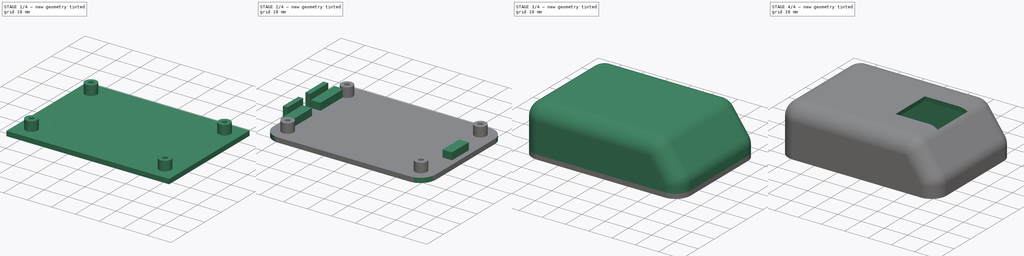
[diagram: build sequence overview — one tinted view per stage of 4, left to right]
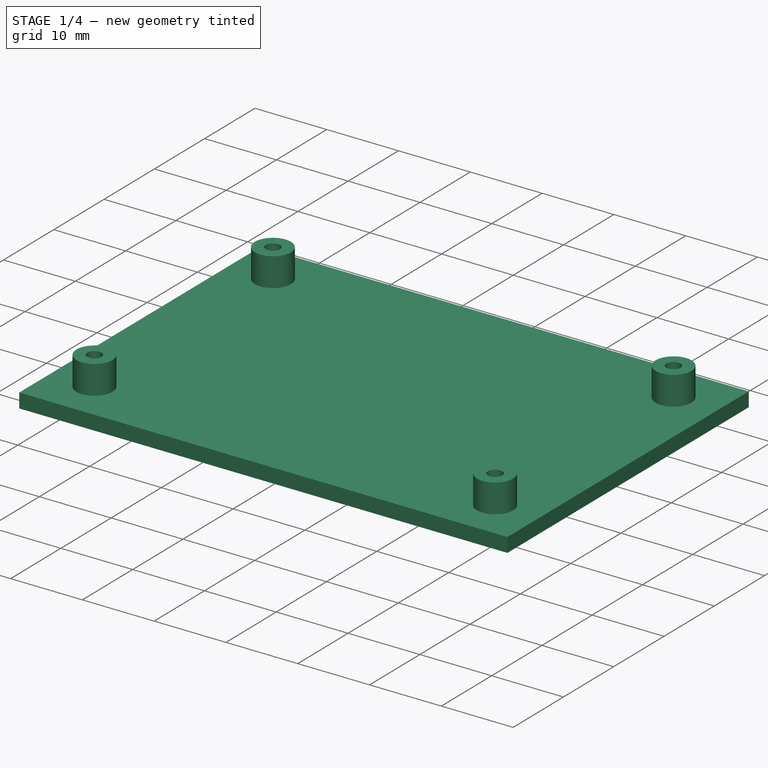
[diagram: stage 1 of 4 — iso view after this stage's code; geometry added in this stage tinted green]
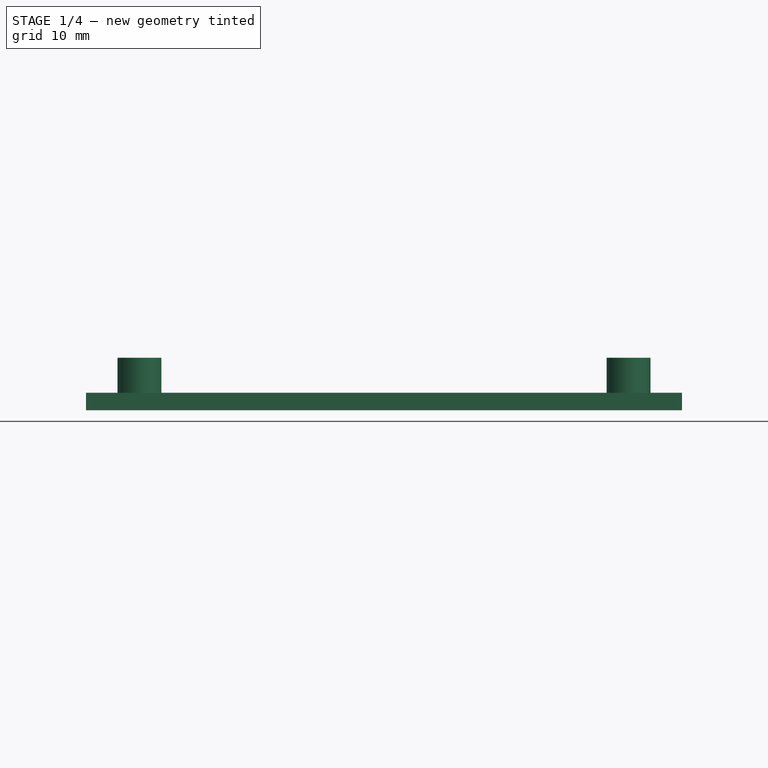
[diagram: stage 1 of 4 — front view after this stage's code; geometry added in this stage tinted green]
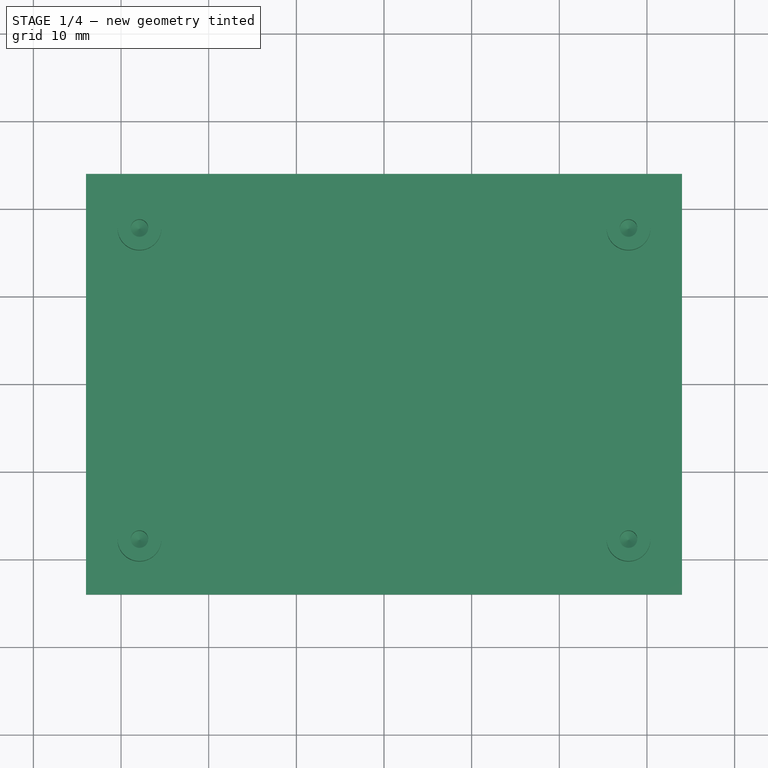
[diagram: stage 1 of 4 — top view after this stage's code; geometry added in this stage tinted green]
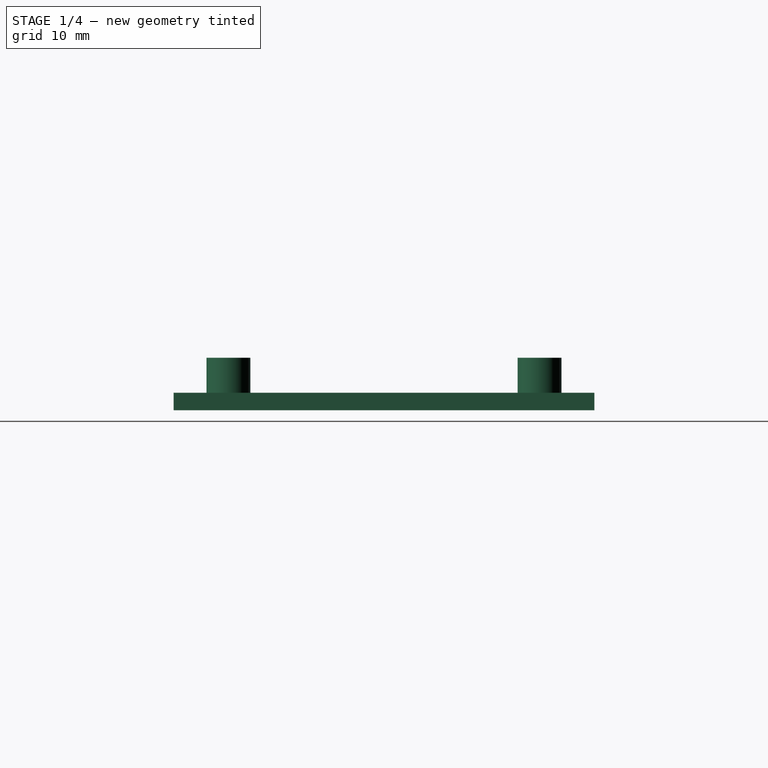
[diagram: stage 1 of 4 — right view after this stage's code; geometry added in this stage tinted green]
FCSTD DOCUMENT  (FreeCAD 0.21R33771 (Git))
Label: controlbox
License: All rights reserved
LicenseURL: http://en.wikipedia.org/wiki/All_rights_reserved
objects: Sketcher::SketchObject×7, PartDesign::Pad×5, Part::Feature×4, App::Part×4, PartDesign::Fillet×2, PartDesign::Pocket×2, PartDesign::Body×2, PartDesign::Hole×1, PartDesign::Chamfer×1, PartDesign::Thickness×1
note: 37 computed .brp shape members not serialized (recipe doc carries the construction recipe); baked Part::Feature solids carry a one-line shape summary decoded from their .brp

FEATURE [Sketcher::SketchObject] Sketch
  FullyConstrained = true
  MapMode = 5
  Support = -> [XY_Plane]
  sketch-geometry (5):
    g0: LineSegment StartX=-34 StartY=-24 StartZ=0 EndX=-34 EndY=24 EndZ=0
    g1: LineSegment StartX=-34 StartY=24 StartZ=0 EndX=34 EndY=24 EndZ=0
    g2: LineSegment StartX=34 StartY=24 StartZ=0 EndX=34 EndY=-24 EndZ=0
    g3: LineSegment StartX=34 StartY=-24 StartZ=0 EndX=-34 EndY=-24 EndZ=0
    g4: GeomPoint X=0 Y=0 Z=0
  constraints (12):
    c: Coincident(g0,g1)
    c: Coincident(g1,g2)
    c: Coincident(g2,g3)
    c: Coincident(g3,g0)
    c: Horizontal(g1)
    c: Horizontal(g3)
    c: Vertical(g0)
    c: Vertical(g2)
    c: Symmetric(g1,g0,g4)
    c: Coincident(g4,g-1)
    c: DistanceX(g1,g1) = 68
    c: DistanceY(g2,g2) = 48
FEATURE [PartDesign::Pad] Pad
  Direction = (0,0,1)
  Length = 2
  Length2 = 10
  Profile = -> Sketch
  ReferenceAxis = -> Sketch [N_Axis]
  Reversed = true
  Type = 0
FEATURE [Sketcher::SketchObject] Sketch001
  FullyConstrained = true
  MapMode = 5
  Support = -> [XY_Plane]
  sketch-geometry (9):
    g0: LineSegment StartX=-27.9 StartY=17.75 StartZ=0 EndX=-27.9 EndY=-17.75 EndZ=0
    g1: LineSegment StartX=-27.9 StartY=-17.75 StartZ=0 EndX=27.9 EndY=-17.75 EndZ=0
    g2: LineSegment StartX=27.9 StartY=-17.75 StartZ=0 EndX=27.9 EndY=17.75 EndZ=0
    g3: LineSegment StartX=27.9 StartY=17.75 StartZ=0 EndX=-27.9 EndY=17.75 EndZ=0
    g4: GeomPoint X=0 Y=0 Z=0
    g5: Circle CenterX=-27.9 CenterY=17.75 CenterZ=0 NormalX=0 NormalY=0 NormalZ=1 AngleXU=0 Radius=2.5
    g6: Circle CenterX=27.9 CenterY=17.75 CenterZ=0 NormalX=0 NormalY=0 NormalZ=1 AngleXU=0 Radius=2.5
    g7: Circle CenterX=-27.9 CenterY=-17.75 CenterZ=0 NormalX=0 NormalY=0 NormalZ=1 AngleXU=0 Radius=2.5
    g8: Circle CenterX=27.9 CenterY=-17.75 CenterZ=0 NormalX=0 NormalY=0 NormalZ=1 AngleXU=0 Radius=2.5
  constraints (20):
    c: Coincident(g0,g1)
    c: Coincident(g1,g2)
    c: Coincident(g2,g3)
    c: Coincident(g3,g0)
    c: Horizontal(g1)
    c: Horizontal(g3)
    c: Vertical(g0)
    c: Vertical(g2)
    c: Symmetric(g1,g0,g4)
    c: Coincident(g4,g-1)
    c: DistanceX(g3,g3) = 55.8
    c: DistanceY(g2,g2) = 35.5
    c: Coincident(g5,g0)
    c: Diameter(g5) = 5
    c: Coincident(g6,g2)
    c: Diameter(g6) = 5
    c: Coincident(g7,g0)
    c: Diameter(g7) = 5
    c: Coincident(g8,g1)
    c: Diameter(g8) = 5
FEATURE [PartDesign::Pad] Pad001
  BaseFeature = -> Pad
  Direction = (0,0,1)
  Length = 4
  Length2 = 10
  Profile = -> Sketch001
  ReferenceAxis = -> Sketch001 [N_Axis]
  Type = 0
FEATURE [PartDesign::Hole] Hole
  BaseFeature = -> Pad001
  CustomThreadClearance = 0
  Depth = 4
  DepthType = 0
  Diameter = 2
  DrillForDepth = false
  DrillPoint = 1
  DrillPointAngle = 118
  HoleCutCountersinkAngle = 90
  HoleCutCustomValues = false
  HoleCutDepth = 0
  HoleCutDiameter = 6.1
  HoleCutType = 0
  ModelThread = false
  Profile = -> Pad001 [Face14,Face12,Face11,Face13]
  Tapered = false
  TaperedAngle = 90
  ThreadClass = 0
  ThreadDepth = 4
  ThreadDepthType = 0
  ThreadDirection = 0
  ThreadFit = 0
  ThreadSize = 0
  ThreadType = 0
  Threaded = false
  UseCustomThreadClearance = false
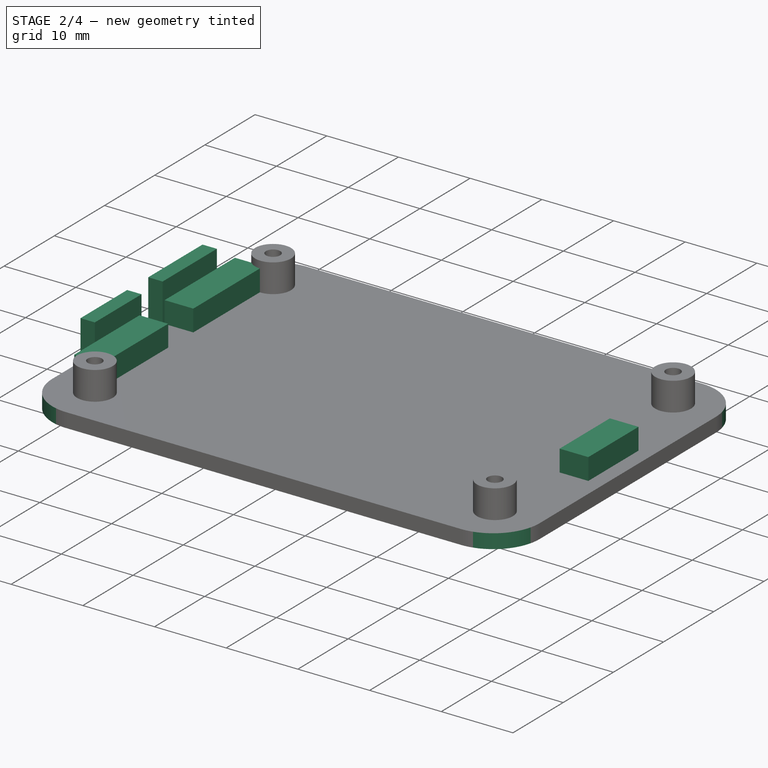
[diagram: stage 2 of 4 — iso view after this stage's code; geometry added in this stage tinted green]
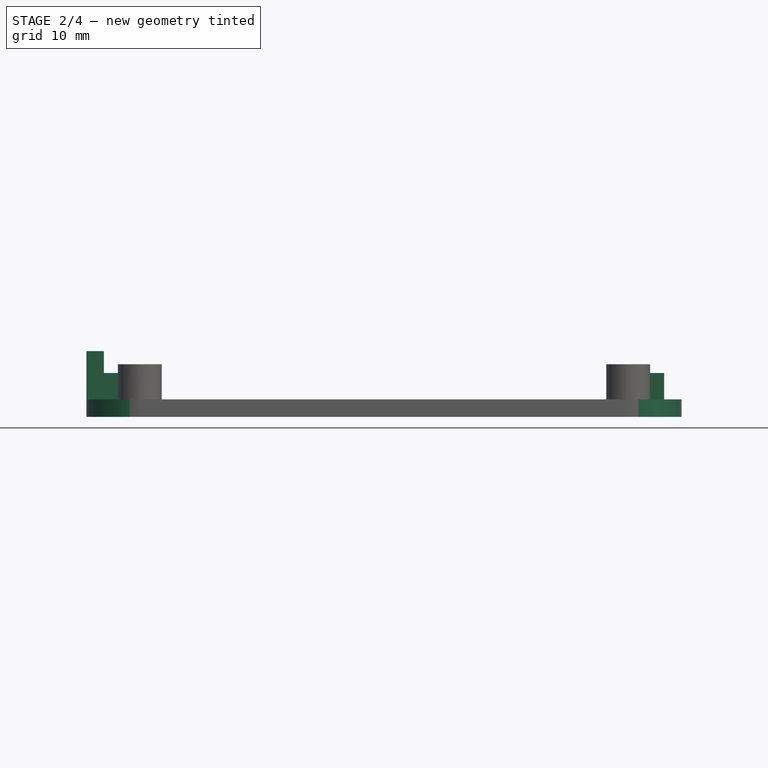
[diagram: stage 2 of 4 — front view after this stage's code; geometry added in this stage tinted green]
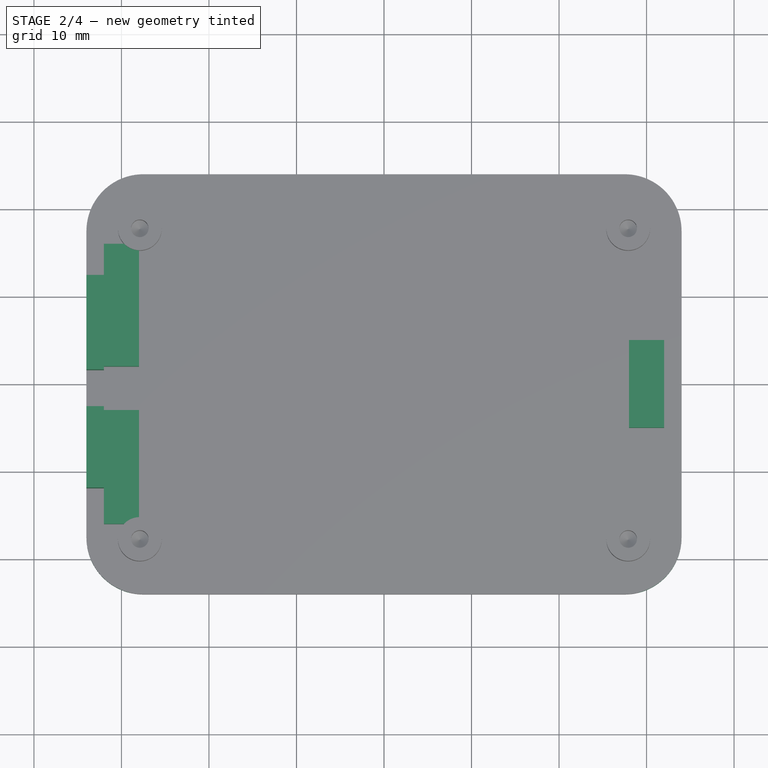
[diagram: stage 2 of 4 — top view after this stage's code; geometry added in this stage tinted green]
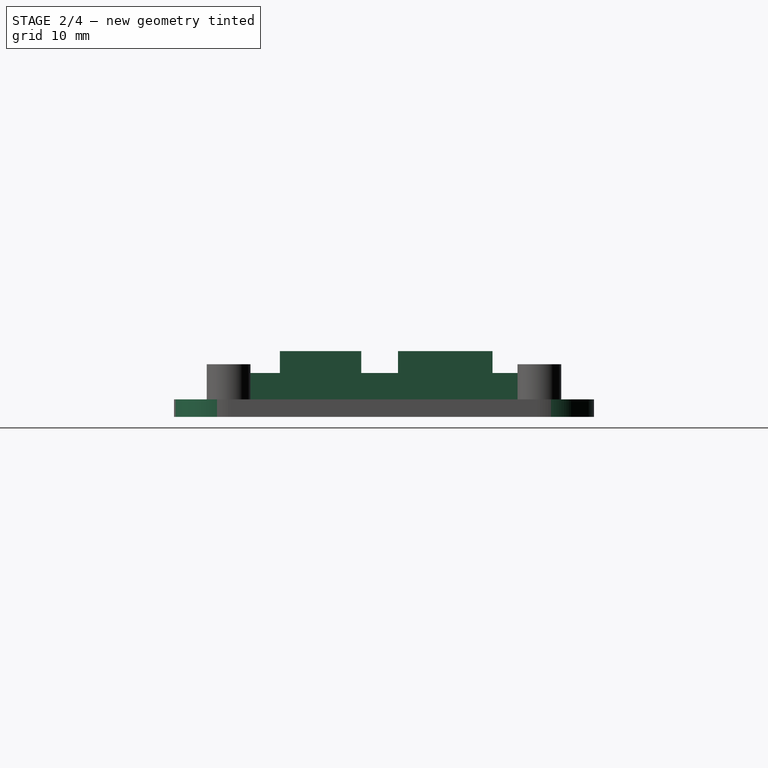
[diagram: stage 2 of 4 — right view after this stage's code; geometry added in this stage tinted green]
FEATURE [PartDesign::Fillet] Fillet
  Base = -> Hole [Edge5,Edge1,Edge8,Edge2]
  BaseFeature = -> Hole
  Radius = 6.5
  SupportTransform = false
  UseAllEdges = false
FEATURE [PartDesign::Body] Body001  label="top_cover"
  Group = -> [Sketch002,Pad002,Chamfer,Fillet001,Thickness,Sketch004,Pocket,Sketch005,Pocket001]
  Origin = -> Origin004
  Tip = -> Pocket001
FEATURE [Sketcher::SketchObject] Sketch006
  FullyConstrained = true
  MapMode = 5
  Support = -> [XY_Plane]
  sketch-geometry (15):
    g0: LineSegment StartX=28 StartY=5 StartZ=0 EndX=28 EndY=-5 EndZ=0
    g1: LineSegment StartX=28 StartY=-5 StartZ=0 EndX=32 EndY=-5 EndZ=0
    g2: LineSegment StartX=32 StartY=-5 StartZ=0 EndX=32 EndY=5 EndZ=0
    g3: LineSegment StartX=32 StartY=5 StartZ=0 EndX=28 EndY=5 EndZ=0
    g4: GeomPoint X=30 Y=1e-16 Z=0
    g5: LineSegment StartX=-32 StartY=2 StartZ=0 EndX=-32 EndY=16 EndZ=0
    g6: LineSegment StartX=-32 StartY=16 StartZ=0 EndX=-28 EndY=16 EndZ=0
    g7: LineSegment StartX=-28 StartY=16 StartZ=0 EndX=-28 EndY=2 EndZ=0
    g8: LineSegment StartX=-28 StartY=2 StartZ=0 EndX=-32 EndY=2 EndZ=0
    g9: GeomPoint X=-30 Y=9 Z=0
    g10: LineSegment StartX=-32 StartY=-3 StartZ=0 EndX=-32 EndY=-16 EndZ=0
    g11: LineSegment StartX=-32 StartY=-16 StartZ=0 EndX=-28 EndY=-16 EndZ=0
    g12: LineSegment StartX=-28 StartY=-16 StartZ=0 EndX=-28 EndY=-3 EndZ=0
    g13: LineSegment StartX=-28 StartY=-3 StartZ=0 EndX=-32 EndY=-3 EndZ=0
    g14: GeomPoint X=-30 Y=-9.5 Z=0
  constraints (39):
    c: Coincident(g0,g1)
    c: Coincident(g1,g2)
    c: Coincident(g2,g3)
    c: Coincident(g3,g0)
    c: Horizontal(g1)
    c: Horizontal(g3)
    c: Vertical(g0)
    c: Vertical(g2)
    c: Symmetric(g1,g0,g4)
    c: PointOnObject(g4,g-1)
    c: DistanceX(g3,g3) = 4
    c: DistanceX(g-1,g4) = 30
    c: DistanceY(g2,g2) = 10
    c: Coincident(g5,g6)
    c: Coincident(g6,g7)
    c: Coincident(g7,g8)
    c: Coincident(g8,g5)
    c: Horizontal(g6)
    c: Horizontal(g8)
    c: Vertical(g5)
    c: Vertical(g7)
    c: Symmetric(g6,g5,g9)
    c: Coincident(g10,g11)
    c: Coincident(g11,g12)
    c: Coincident(g12,g13)
    c: Coincident(g13,g10)
    c: Horizontal(g11)
    c: Horizontal(g13)
    c: Vertical(g10)
    c: Vertical(g12)
    c: Symmetric(g11,g10,g14)
    c: DistanceX(g6,g6) = 4
    c: DistanceX(g13,g13) = 4
    c: DistanceY(g12,g12) = 13
    c: DistanceY(g7,g7) = 14
    c: DistanceX(g9,g-1) = 30
    c: DistanceX(g14,g-1) = 30
    c: DistanceY(g-1,g9) = 9
    c: DistanceY(g14,g-1) = 9.5
FEATURE [PartDesign::Pad] Pad003
  BaseFeature = -> Fillet
  Direction = (0,0,1)
  Length = 3
  Length2 = 10
  Profile = -> Sketch006
  ReferenceAxis = -> Sketch006 [N_Axis]
  Type = 0
FEATURE [Sketcher::SketchObject] Sketch007
  FullyConstrained = true
  MapMode = 5
  Support = -> [Pad003]
  sketch-geometry (8):
    g0: LineSegment StartX=-32 StartY=12.4 StartZ=0 EndX=-34 EndY=12.4 EndZ=0
    g1: LineSegment StartX=-34 StartY=12.4 StartZ=0 EndX=-34 EndY=1.6 EndZ=0
    g2: LineSegment StartX=-34 StartY=1.6 StartZ=0 EndX=-32 EndY=1.6 EndZ=0
    g3: LineSegment StartX=-32 StartY=1.6 StartZ=0 EndX=-32 EndY=12.4 EndZ=0
    g4: LineSegment StartX=-34 StartY=-2.6 StartZ=0 EndX=-32 EndY=-2.6 EndZ=0
    g5: LineSegment StartX=-32 StartY=-2.6 StartZ=0 EndX=-32 EndY=-11.9 EndZ=0
    g6: LineSegment StartX=-32 StartY=-11.9 StartZ=0 EndX=-34 EndY=-11.9 EndZ=0
    g7: LineSegment StartX=-34 StartY=-11.9 StartZ=0 EndX=-34 EndY=-2.6 EndZ=0
  constraints (24):
    c: Coincident(g0,g1)
    c: Coincident(g1,g2)
    c: Coincident(g2,g3)
    c: Coincident(g3,g0)
    c: Horizontal(g0)
    c: Horizontal(g2)
    c: Vertical(g1)
    c: Vertical(g3)
    c: DistanceY(g-1,g1) = 1.6
    c: DistanceX(g0,g0) = 2
    c: DistanceX(g2,g-1) = 32
    c: DistanceY(g3,g3) = 10.8
    c: Coincident(g4,g5)
    c: Coincident(g5,g6)
    c: Coincident(g6,g7)
    c: Coincident(g7,g4)
    c: Horizontal(g4)
    c: Horizontal(g6)
    c: Vertical(g5)
    c: Vertical(g7)
    c: DistanceX(g4,g-1) = 32
    c: DistanceX(g6,g6) = 2
    c: DistanceY(g4,g-1) = 2.6
    c: DistanceY(g5,g5) = 9.3
FEATURE [PartDesign::Pad] Pad004
  BaseFeature = -> Pad003
  Direction = (0,0,1)
  Length = 5.5
  Length2 = 10
  Profile = -> Sketch007
  ReferenceAxis = -> Sketch007 [N_Axis]
  Type = 0
FEATURE [PartDesign::Body] Body  label="botton_plate"
  Group = -> [Sketch,Pad,Sketch001,Pad001,Hole,Fillet,Sketch006,Pad003,Sketch007,Pad004]
  Origin = -> Origin
  Tip = -> Pad004
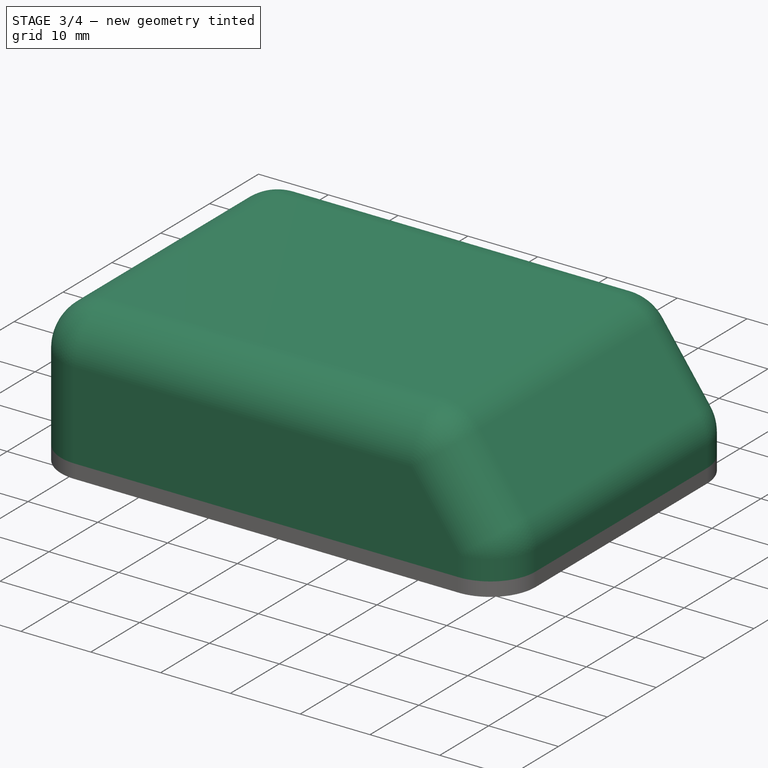
[diagram: stage 3 of 4 — iso view after this stage's code; geometry added in this stage tinted green]
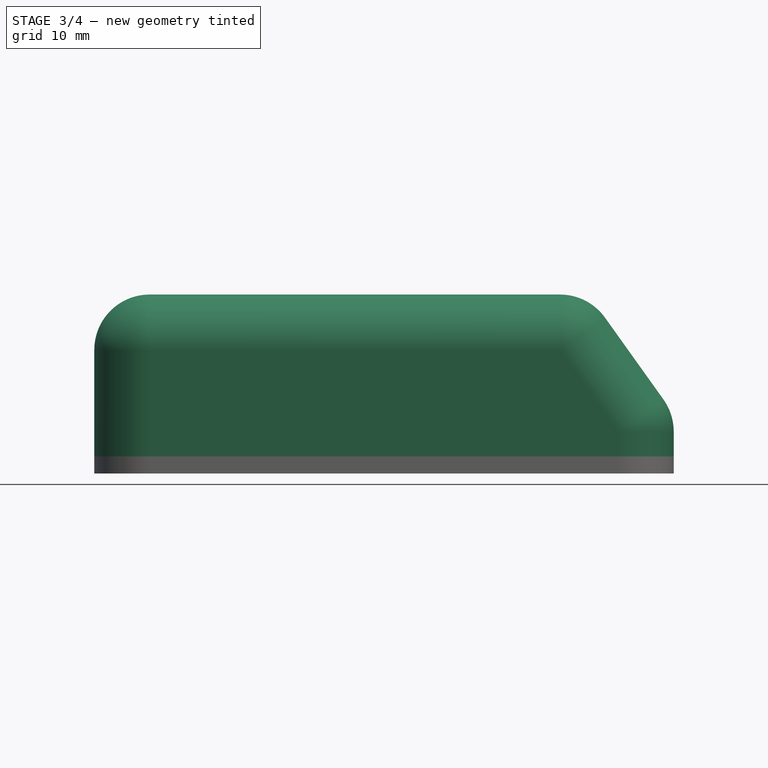
[diagram: stage 3 of 4 — front view after this stage's code; geometry added in this stage tinted green]
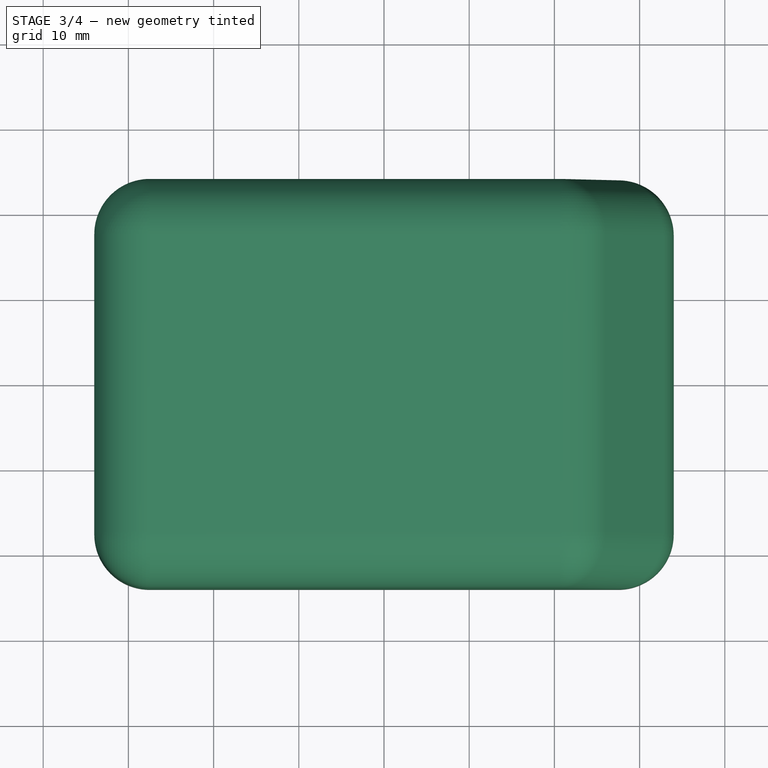
[diagram: stage 3 of 4 — top view after this stage's code; geometry added in this stage tinted green]
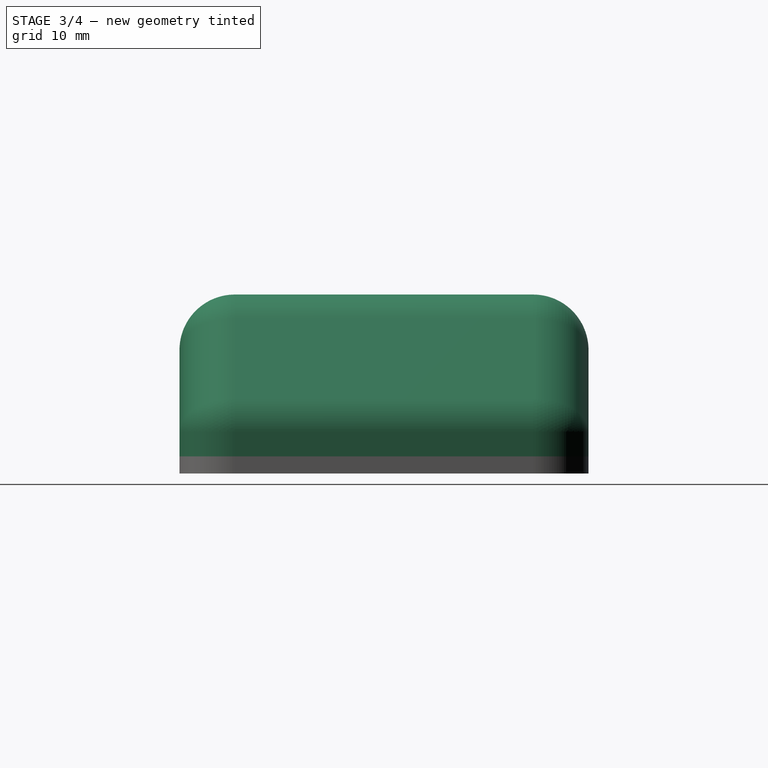
[diagram: stage 3 of 4 — right view after this stage's code; geometry added in this stage tinted green]
FEATURE [Sketcher::SketchObject] Sketch002
  FullyConstrained = true
  MapMode = 5
  Support = -> [XY_Plane004]
  sketch-geometry (5):
    g0: LineSegment StartX=-34 StartY=24 StartZ=0 EndX=-34 EndY=-24 EndZ=0
    g1: LineSegment StartX=-34 StartY=-24 StartZ=0 EndX=34 EndY=-24 EndZ=0
    g2: LineSegment StartX=34 StartY=-24 StartZ=0 EndX=34 EndY=24 EndZ=0
    g3: LineSegment StartX=34 StartY=24 StartZ=0 EndX=-34 EndY=24 EndZ=0
    g4: GeomPoint X=0 Y=0 Z=0
  constraints (12):
    c: Coincident(g0,g1)
    c: Coincident(g1,g2)
    c: Coincident(g2,g3)
    c: Coincident(g3,g0)
    c: Horizontal(g1)
    c: Horizontal(g3)
    c: Vertical(g0)
    c: Vertical(g2)
    c: Symmetric(g1,g0,g4)
    c: Coincident(g4,g-1)
    c: DistanceY(g2,g2) = 48
    c: DistanceX(g3,g3) = 68
FEATURE [PartDesign::Pad] Pad002
  Direction = (0,0,1)
  Length = 19
  Length2 = 10
  Profile = -> Sketch002
  ReferenceAxis = -> Sketch002 [N_Axis]
  Type = 0
FEATURE [PartDesign::Chamfer] Chamfer
  Angle = 45
  Base = -> Pad002 [Edge10]
  BaseFeature = -> Pad002
  ChamferType = 1
  FlipDirection = false
  Size = 14
  Size2 = 10
  SupportTransform = false
  UseAllEdges = false
FEATURE [PartDesign::Fillet] Fillet001
  Base = -> Chamfer [Edge2,Edge9,Edge4,Edge13,Edge14,Edge10,Edge6,Edge8,Edge1,Edge15,Edge5]
  BaseFeature = -> Chamfer
  Radius = 6.5
  SupportTransform = false
  UseAllEdges = false
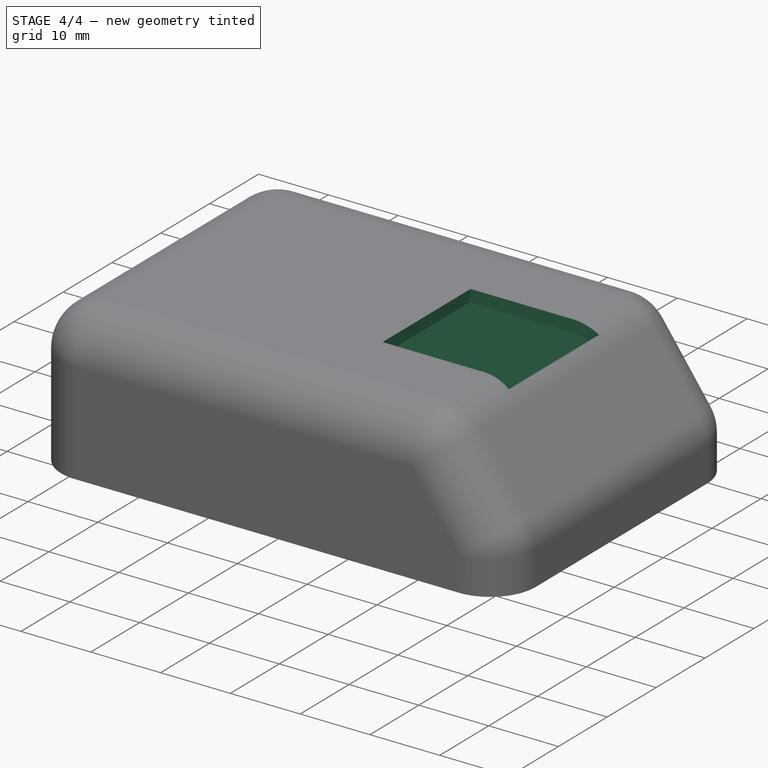
[diagram: stage 4 of 4 — iso view after this stage's code; geometry added in this stage tinted green]
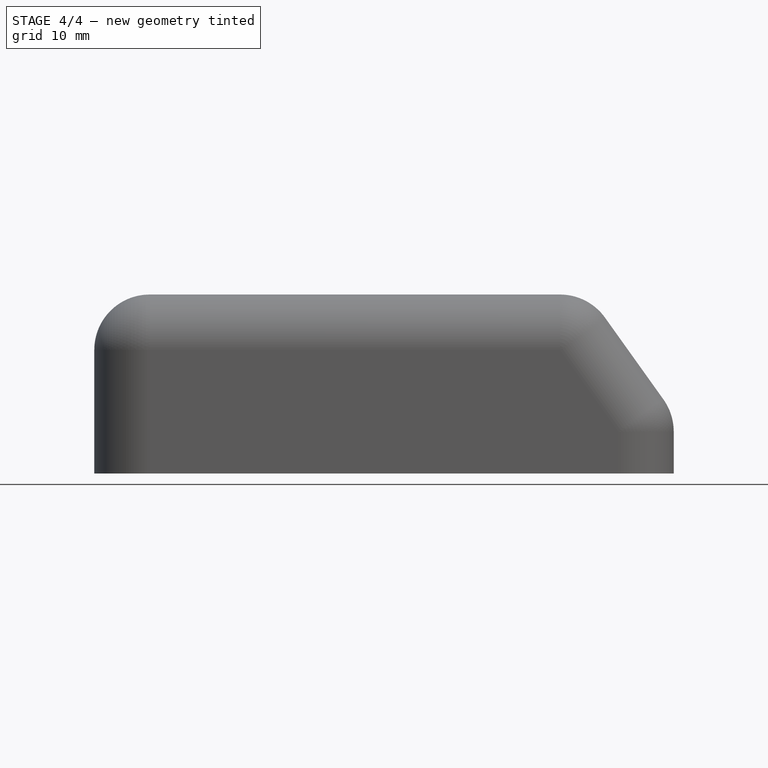
[diagram: stage 4 of 4 — front view after this stage's code; geometry added in this stage tinted green]
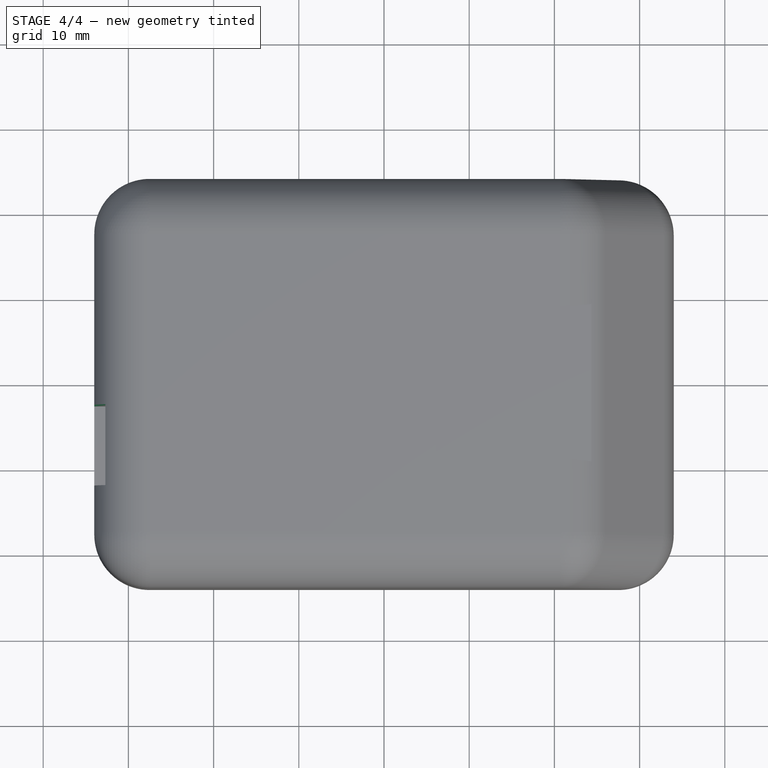
[diagram: stage 4 of 4 — top view after this stage's code; geometry added in this stage tinted green]
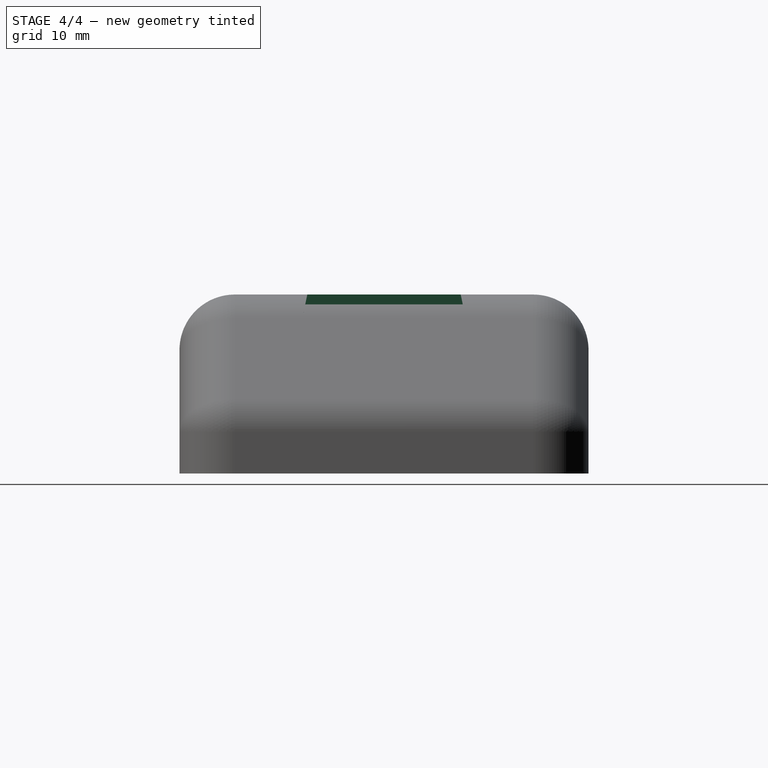
[diagram: stage 4 of 4 — right view after this stage's code; geometry added in this stage tinted green]
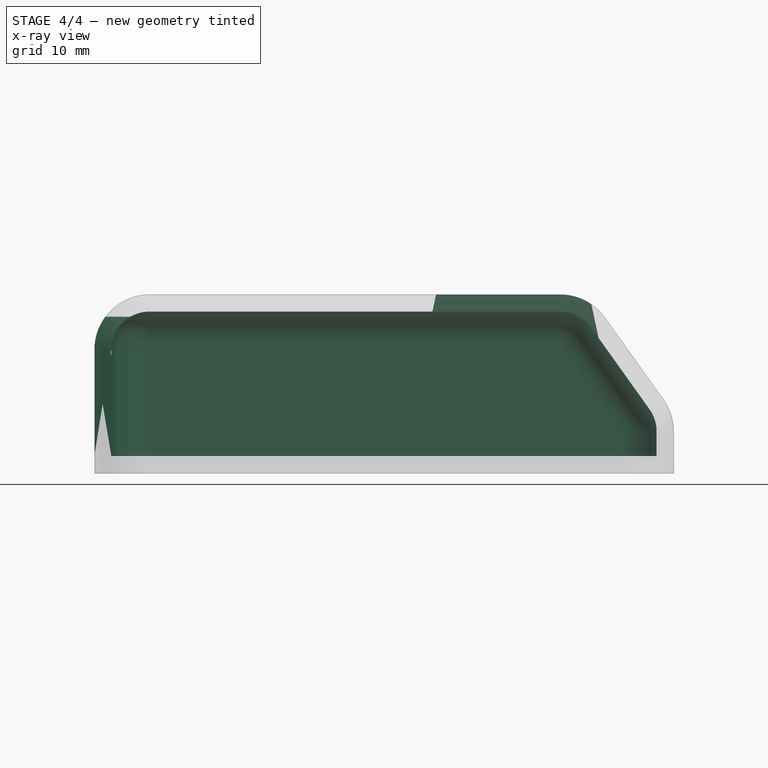
[diagram: stage 4 of 4 — x-ray composite at the front view; earlier geometry ghosted, this stage's added geometry solid]
FEATURE [PartDesign::Thickness] Thickness
  Base = -> Fillet001 [Face2]
  BaseFeature = -> Fillet001
  Intersection = false
  Join = 0
  Mode = 0
  Reversed = true
  SupportTransform = false
  Value = 2
FEATURE [Sketcher::SketchObject] Sketch004
  FullyConstrained = true
  MapMode = 5
  Placement = pos=(0,0,19) rot=(0,0,1;0rad)
  Support = -> [Thickness]
  sketch-geometry (5):
    g0: LineSegment StartX=6.1 StartY=9 StartZ=0 EndX=6.1 EndY=-9 EndZ=0
    g1: LineSegment StartX=6.1 StartY=-9 StartZ=0 EndX=24.1 EndY=-9 EndZ=0
    g2: LineSegment StartX=24.1 StartY=-9 StartZ=0 EndX=24.1 EndY=9 EndZ=0
    g3: LineSegment StartX=24.1 StartY=9 StartZ=0 EndX=6.1 EndY=9 EndZ=0
    g4: GeomPoint X=15.1 Y=0 Z=0
  constraints (13):
    c: Coincident(g0,g1)
    c: Coincident(g1,g2)
    c: Coincident(g2,g3)
    c: Coincident(g3,g0)
    c: Horizontal(g1)
    c: Horizontal(g3)
    c: Vertical(g0)
    c: Vertical(g2)
    c: Symmetric(g1,g0,g4)
    c: PointOnObject(g4,g-1)
    c: DistanceX(g3,g3) = 18
    c: DistanceY(g0,g0) = 18
    c: DistanceX(g-1,g4) = 15.1
FEATURE [PartDesign::Pocket] Pocket
  BaseFeature = -> Thickness
  Direction = (0,0,-1)
  Length = 5
  Length2 = 5
  Profile = -> Sketch004
  ReferenceAxis = -> Sketch004 [N_Axis]
  TaperAngle = 12
  Type = 0
FEATURE [Part::Feature] Part__Feature  label="COMPOUND"
  shape: bbox 15.61 x 15.61 x 18.61 mm, 918 faces, 7 solids (baked)
FEATURE [App::Part] cherry_mx_asm_PLATE
  Group = -> [Part__Feature]
  Origin = -> Origin005
  Placement = pos=(71.4199,-136.86,7.13) rot=(0.707107,-0.707107,0;3.14159rad)
FEATURE [Part::Feature] Part__Feature001  label="COMPOUND001"
  shape: bbox 3.534 x 3.928 x 26.38 mm, 57 faces, 3 solids (baked)
FEATURE [App::Part] LED_3mm_Red_21mm_Leads  label="LED 3mm Red 21mm Leads"
  Group = -> [Part__Feature001]
  Origin = -> Origin006
  Placement = pos=(71.0999,-142.24,-7.37) rot=(0,0,1;3.14159rad)
FEATURE [Part::Feature] Part__Feature002  label="COMPOUND002"
  shape: bbox 9.77 x 14.38 x 14.62 mm, 201 faces, 6 solids (baked)
FEATURE [App::Part] DC_barrel_jack5_5mm_2_1mm
  Group = -> [Part__Feature002]
  Origin = -> Origin007
  Placement = pos=(63.7539,-89.4799,7.63) rot=(0,0.707107,0.707107;3.14159rad)
FEATURE [Part::Feature] Part__Feature003  label="PCB"
  shape: bbox 40.64 x 60.96 x 1.58 mm, 193 faces (baked)
FEATURE [App::Part] control_board_1  label="control_board 1"
  Group = -> [cherry_mx_asm_PLATE,LED_3mm_Red_21mm_Leads,DC_barrel_jack5_5mm_2_1mm,Part__Feature003]
  Origin = -> Origin008
  Placement = pos=(-122,-71,4) rot=(0,0,1;1.5708rad)
FEATURE [Sketcher::SketchObject] Sketch005
  FullyConstrained = true
  MapMode = 5
  Placement = pos=(-34,0,0) rot=(0.57735,-0.57735,-0.57735;2.0944rad)
  Support = -> [Pocket]
  sketch-geometry (8):
    g0: LineSegment StartX=12 StartY=16.4 StartZ=0 EndX=2.5 EndY=16.4 EndZ=0
    g1: LineSegment StartX=2.5 StartY=16.4 StartZ=0 EndX=2.5 EndY=0 EndZ=0
    g2: LineSegment StartX=2.5 StartY=0 StartZ=0 EndX=12 EndY=0 EndZ=0
    g3: LineSegment StartX=12 StartY=0 StartZ=0 EndX=12 EndY=16.4 EndZ=0
    g4: LineSegment StartX=-1.5 StartY=0 StartZ=0 EndX=-12.5 EndY=0 EndZ=0
    g5: LineSegment StartX=-12.5 StartY=0 StartZ=0 EndX=-12.5 EndY=12 EndZ=0
    g6: LineSegment StartX=-12.5 StartY=12 StartZ=0 EndX=-1.5 EndY=12 EndZ=0
    g7: LineSegment StartX=-1.5 StartY=12 StartZ=0 EndX=-1.5 EndY=0 EndZ=0
  constraints (24):
    c: Coincident(g0,g1)
    c: Coincident(g1,g2)
    c: Coincident(g2,g3)
    c: Coincident(g3,g0)
    c: Horizontal(g0)
    c: Horizontal(g2)
    c: Vertical(g1)
    c: Vertical(g3)
    c: PointOnObject(g1,g-1)
    c: DistanceY(g1,g1) = 16.4
    c: DistanceX(g0,g0) = 9.5
    c: DistanceX(g-1,g1) = 2.5
    c: Coincident(g4,g5)
    c: Coincident(g5,g6)
    c: Coincident(g6,g7)
    c: Coincident(g7,g4)
    c: Horizontal(g4)
    c: Horizontal(g6)
    c: Vertical(g5)
    c: Vertical(g7)
    c: PointOnObject(g4,g-1)
    c: DistanceY(g5,g5) = 12
    c: DistanceX(g6,g6) = 11
    c: DistanceX(g4,g-1) = 1.5
FEATURE [PartDesign::Pocket] Pocket001
  BaseFeature = -> Pocket
  Direction = (1,0,0)
  Length = 5
  Length2 = 5
  Profile = -> Sketch005
  ReferenceAxis = -> Sketch005 [N_Axis]
  Type = 0
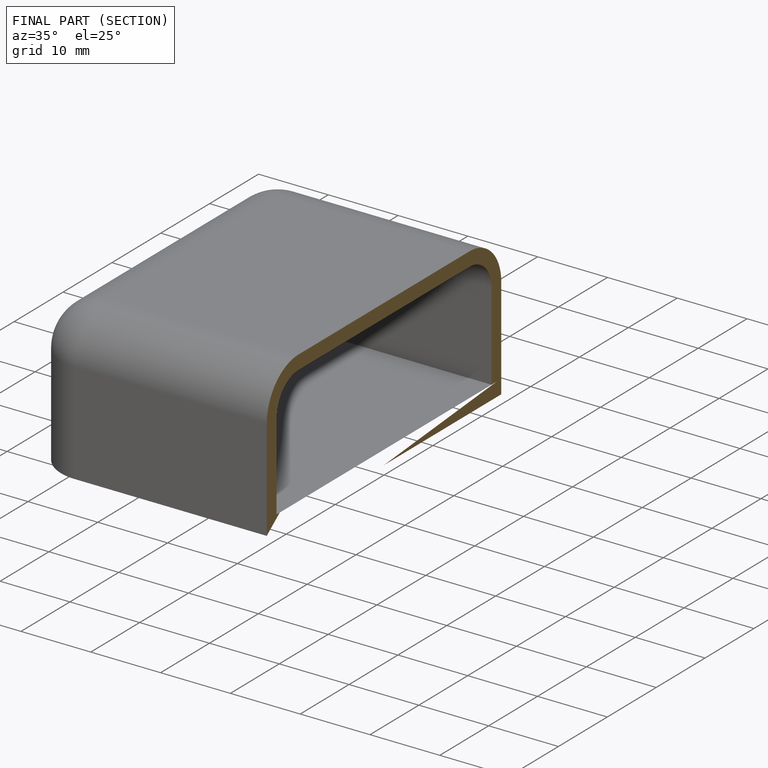
[diagram: finished part — half-section view (interior)]
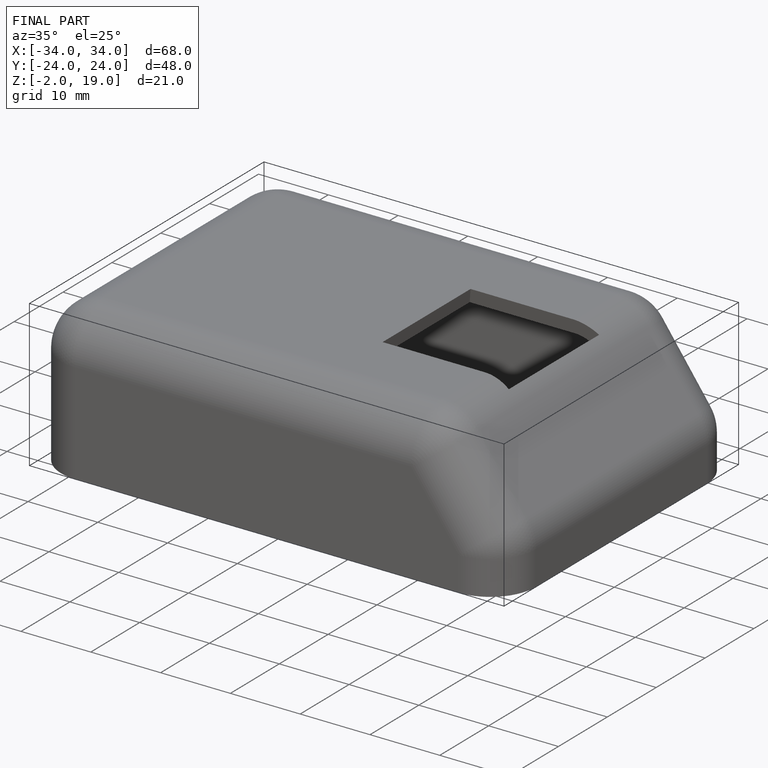
[diagram: finished part — iso view with bounding-box wireframe]
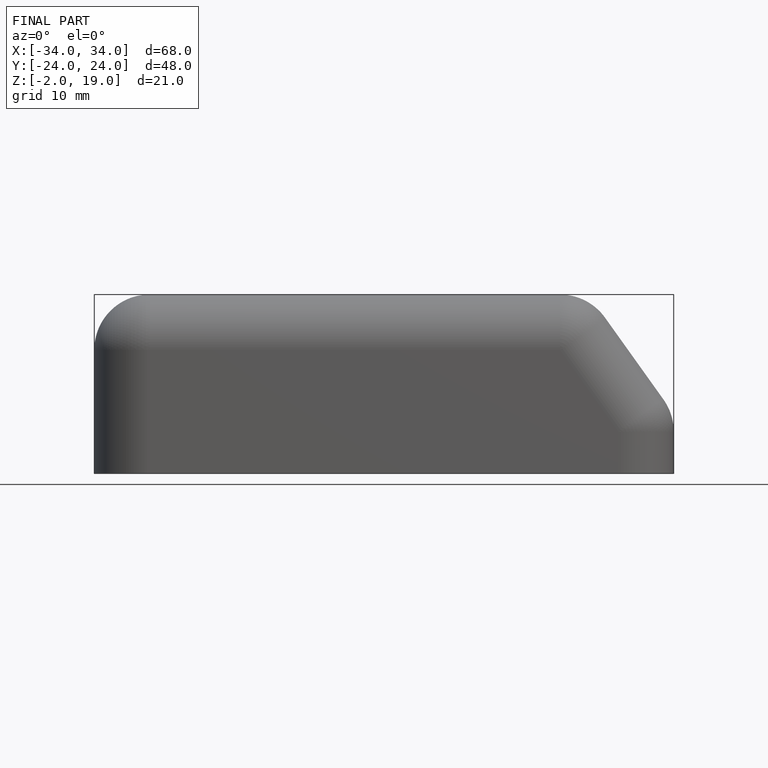
[diagram: finished part — front view with bounding-box wireframe]
